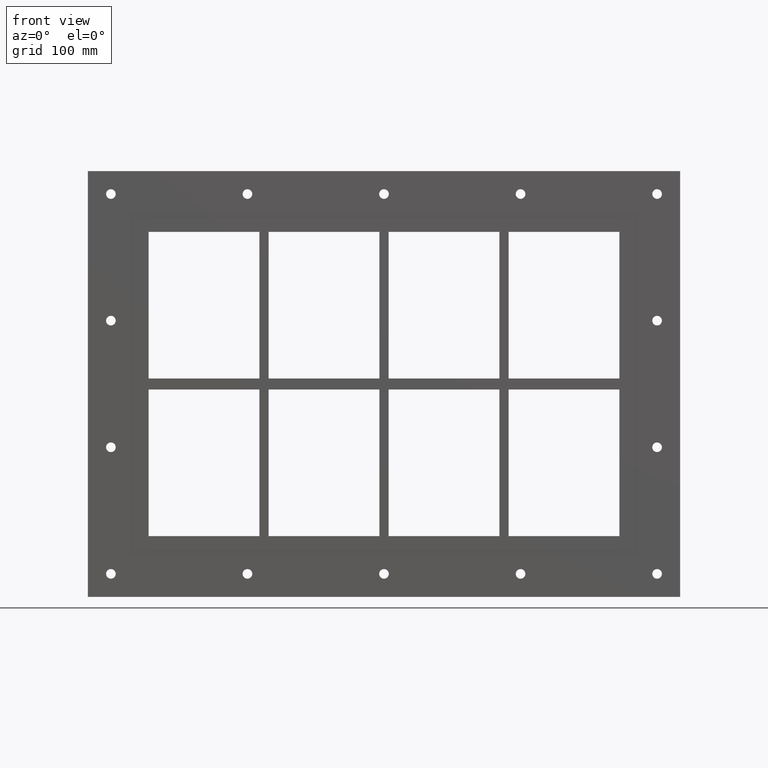
[diagram: clean part render]
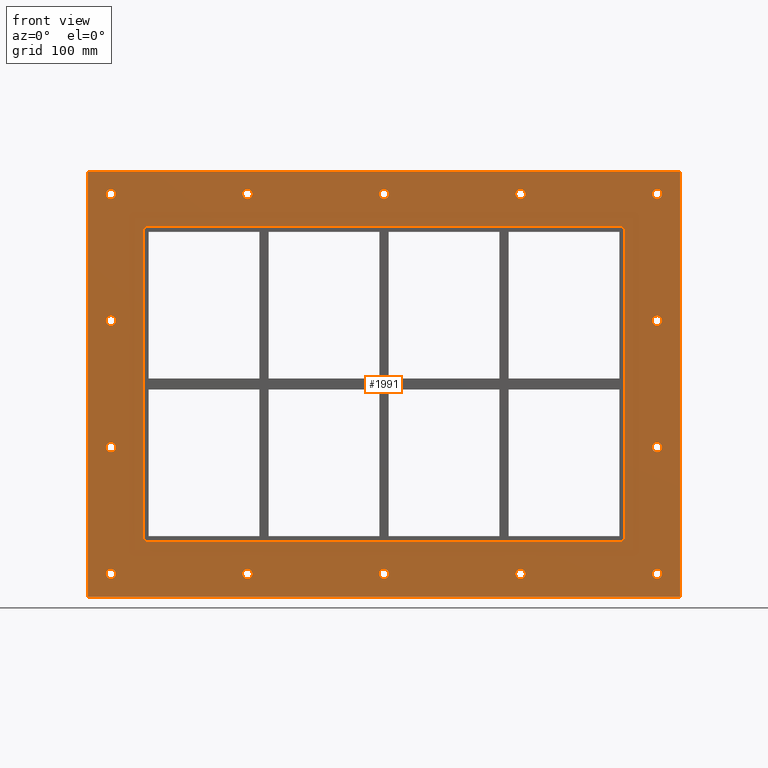
[diagram: same view with one face highlighted and labeled with its STEP entity id]
A machine part, front view. The second image highlights one B-rep face of the part: STEP entity #1991.
In plain terms, the highlighted planar face has unit normal (0, 1, 0).
Its self-contained STEP definition (entity closure, byte-faithful):
#84=CARTESIAN_POINT('',(-291.75000000000017,0.0,-206.50000000000003));
#85=VERTEX_POINT('',#84);
#86=CARTESIAN_POINT('',(-297.00000000000017,0.0,-206.50000000000003));
#87=DIRECTION('',(0.0,1.0,0.0));
#88=DIRECTION('',(1.0,0.0,0.0));
#89=AXIS2_PLACEMENT_3D('',#86,#87,#88);
#90=CIRCLE('',#89,5.25);
#91=EDGE_CURVE('',#85,#85,#90,.T.);
#112=CARTESIAN_POINT('',(302.24999999999989,0.0,-68.799999999999983));
#113=VERTEX_POINT('',#112);
#114=CARTESIAN_POINT('',(296.99999999999989,0.0,-68.799999999999983));
#115=DIRECTION('',(0.0,1.0,0.0));
#116=DIRECTION('',(1.0,0.0,0.0));
#117=AXIS2_PLACEMENT_3D('',#114,#115,#116);
#118=CIRCLE('',#117,5.25);
#119=EDGE_CURVE('',#113,#113,#118,.T.);
#140=CARTESIAN_POINT('',(-291.75000000000017,0.0,-68.799999999999983));
#141=VERTEX_POINT('',#140);
#142=CARTESIAN_POINT('',(-297.00000000000017,0.0,-68.799999999999983));
#143=DIRECTION('',(0.0,1.0,0.0));
#144=DIRECTION('',(1.0,0.0,0.0));
#145=AXIS2_PLACEMENT_3D('',#142,#143,#144);
#146=CIRCLE('',#145,5.25);
#147=EDGE_CURVE('',#141,#141,#146,.T.);
#168=CARTESIAN_POINT('',(302.24999999999989,0.0,68.900000000000006));
#169=VERTEX_POINT('',#168);
#170=CARTESIAN_POINT('',(296.99999999999989,0.0,68.900000000000006));
#171=DIRECTION('',(0.0,1.0,0.0));
#172=DIRECTION('',(1.0,0.0,0.0));
#173=AXIS2_PLACEMENT_3D('',#170,#171,#172);
#174=CIRCLE('',#173,5.25);
#175=EDGE_CURVE('',#169,#169,#174,.T.);
#196=CARTESIAN_POINT('',(-291.75000000000017,0.0,68.900000000000006));
#197=VERTEX_POINT('',#196);
#198=CARTESIAN_POINT('',(-297.00000000000017,0.0,68.900000000000006));
#199=DIRECTION('',(0.0,1.0,0.0));
#200=DIRECTION('',(1.0,0.0,0.0));
#201=AXIS2_PLACEMENT_3D('',#198,#199,#200);
#202=CIRCLE('',#201,5.25);
#203=EDGE_CURVE('',#197,#197,#202,.T.);
#224=CARTESIAN_POINT('',(-143.25000000000017,0.0,206.59999999999999));
#225=VERTEX_POINT('',#224);
#226=CARTESIAN_POINT('',(-148.50000000000017,0.0,206.59999999999999));
#227=DIRECTION('',(0.0,1.0,0.0));
#228=DIRECTION('',(1.0,0.0,0.0));
#229=AXIS2_PLACEMENT_3D('',#226,#227,#228);
#230=CIRCLE('',#229,5.25);
#231=EDGE_CURVE('',#225,#225,#230,.T.);
#252=CARTESIAN_POINT('',(-143.25000000000017,0.0,-206.50000000000003));
#253=VERTEX_POINT('',#252);
#254=CARTESIAN_POINT('',(-148.50000000000017,0.0,-206.50000000000003));
#255=DIRECTION('',(0.0,1.0,0.0));
#256=DIRECTION('',(1.0,0.0,0.0));
#257=AXIS2_PLACEMENT_3D('',#254,#255,#256);
#258=CIRCLE('',#257,5.25);
#259=EDGE_CURVE('',#253,#253,#258,.T.);
#280=CARTESIAN_POINT('',(5.249999999999844,0.0,206.59999999999999));
#281=VERTEX_POINT('',#280);
#282=CARTESIAN_POINT('',(-1.421085E-013,0.0,206.59999999999999));
#283=DIRECTION('',(0.0,1.0,0.0));
#284=DIRECTION('',(1.0,0.0,0.0));
#285=AXIS2_PLACEMENT_3D('',#282,#283,#284);
#286=CIRCLE('',#285,5.25);
#287=EDGE_CURVE('',#281,#281,#286,.T.);
#308=CARTESIAN_POINT('',(5.249999999999844,0.0,-206.50000000000003));
#309=VERTEX_POINT('',#308);
#310=CARTESIAN_POINT('',(-1.421085E-013,0.0,-206.50000000000003));
#311=DIRECTION('',(0.0,1.0,0.0));
#312=DIRECTION('',(1.0,0.0,0.0));
#313=AXIS2_PLACEMENT_3D('',#310,#311,#312);
#314=CIRCLE('',#313,5.25);
#315=EDGE_CURVE('',#309,#309,#314,.T.);
#336=CARTESIAN_POINT('',(153.74999999999986,0.0,206.59999999999999));
#337=VERTEX_POINT('',#336);
#338=CARTESIAN_POINT('',(148.49999999999989,0.0,206.59999999999999));
#339=DIRECTION('',(0.0,1.0,0.0));
#340=DIRECTION('',(1.0,0.0,0.0));
#341=AXIS2_PLACEMENT_3D('',#338,#339,#340);
#342=CIRCLE('',#341,5.25);
#343=EDGE_CURVE('',#337,#337,#342,.T.);
#364=CARTESIAN_POINT('',(153.74999999999986,0.0,-206.50000000000003));
#365=VERTEX_POINT('',#364);
#366=CARTESIAN_POINT('',(148.49999999999989,0.0,-206.50000000000003));
#367=DIRECTION('',(0.0,1.0,0.0));
#368=DIRECTION('',(1.0,0.0,0.0));
#369=AXIS2_PLACEMENT_3D('',#366,#367,#368);
#370=CIRCLE('',#369,5.25);
#371=EDGE_CURVE('',#365,#365,#370,.T.);
#392=CARTESIAN_POINT('',(302.24999999999989,0.0,-206.50000000000003));
#393=VERTEX_POINT('',#392);
#394=CARTESIAN_POINT('',(296.99999999999989,0.0,-206.50000000000003));
#395=DIRECTION('',(0.0,1.0,0.0));
#396=DIRECTION('',(1.0,0.0,0.0));
#397=AXIS2_PLACEMENT_3D('',#394,#395,#396);
#398=CIRCLE('',#397,5.25);
#399=EDGE_CURVE('',#393,#393,#398,.T.);
#420=CARTESIAN_POINT('',(-291.75000000000017,0.0,206.59999999999999));
#421=VERTEX_POINT('',#420);
#422=CARTESIAN_POINT('',(-297.00000000000017,0.0,206.59999999999999));
#423=DIRECTION('',(0.0,1.0,0.0));
#424=DIRECTION('',(1.0,0.0,0.0));
#425=AXIS2_PLACEMENT_3D('',#422,#423,#424);
#426=CIRCLE('',#425,5.25);
#427=EDGE_CURVE('',#421,#421,#426,.T.);
#448=CARTESIAN_POINT('',(302.24999999999989,0.0,206.59999999999999));
#449=VERTEX_POINT('',#448);
#450=CARTESIAN_POINT('',(296.99999999999989,0.0,206.59999999999999));
#451=DIRECTION('',(0.0,1.0,0.0));
#452=DIRECTION('',(1.0,0.0,0.0));
#453=AXIS2_PLACEMENT_3D('',#450,#451,#452);
#454=CIRCLE('',#453,5.25);
#455=EDGE_CURVE('',#449,#449,#454,.T.);
#1840=CARTESIAN_POINT('',(3.080944E-014,0.0,2.283429E-014));
#1841=DIRECTION('',(0.0,1.0,0.0));
#1842=DIRECTION('',(0.0,0.0,1.0));
#1843=AXIS2_PLACEMENT_3D('',#1840,#1841,#1842);
#1844=PLANE('',#1843);
#1845=CARTESIAN_POINT('',(-322.0,0.0,231.50000000000006));
#1846=VERTEX_POINT('',#1845);
#1847=CARTESIAN_POINT('',(322.00000000000011,0.0,231.50000000000006));
#1848=VERTEX_POINT('',#1847);
#1849=CARTESIAN_POINT('',(-322.0,0.0,231.50000000000006));
#1850=DIRECTION('',(1.0,0.0,0.0));
#1851=VECTOR('',#1850,644.0);
#1852=LINE('',#1849,#1851);
#1853=EDGE_CURVE('',#1846,#1848,#1852,.T.);
#1854=ORIENTED_EDGE('',*,*,#1853,.F.);
#1855=CARTESIAN_POINT('',(-322.0,0.0,-231.50000000000003));
#1856=VERTEX_POINT('',#1855);
#1857=CARTESIAN_POINT('',(-322.0,0.0,-231.50000000000003));
#1858=DIRECTION('',(0.0,0.0,1.0));
#1859=VECTOR('',#1858,463.00000000000011);
#1860=LINE('',#1857,#1859);
#1861=EDGE_CURVE('',#1856,#1846,#1860,.T.);
#1862=ORIENTED_EDGE('',*,*,#1861,.F.);
#1863=CARTESIAN_POINT('',(322.00000000000011,0.0,-231.50000000000003));
#1864=VERTEX_POINT('',#1863);
#1865=CARTESIAN_POINT('',(322.00000000000011,0.0,-231.50000000000003));
#1866=DIRECTION('',(-1.0,0.0,0.0));
#1867=VECTOR('',#1866,644.0);
#1868=LINE('',#1865,#1867);
#1869=EDGE_CURVE('',#1864,#1856,#1868,.T.);
#1870=ORIENTED_EDGE('',*,*,#1869,.F.);
#1871=CARTESIAN_POINT('',(322.00000000000011,0.0,231.50000000000006));
#1872=DIRECTION('',(0.0,0.0,-1.0));
#1873=VECTOR('',#1872,463.00000000000011);
#1874=LINE('',#1871,#1873);
#1875=EDGE_CURVE('',#1848,#1864,#1874,.T.);
#1876=ORIENTED_EDGE('',*,*,#1875,.F.);
#1877=EDGE_LOOP('',(#1854,#1862,#1870,#1876));
#1878=FACE_OUTER_BOUND('',#1877,.T.);
#1879=ORIENTED_EDGE('',*,*,#91,.T.);
#1880=EDGE_LOOP('',(#1879));
#1881=FACE_BOUND('',#1880,.T.);
#1882=ORIENTED_EDGE('',*,*,#119,.T.);
#1883=EDGE_LOOP('',(#1882));
#1884=FACE_BOUND('',#1883,.T.);
#1885=ORIENTED_EDGE('',*,*,#147,.T.);
#1886=EDGE_LOOP('',(#1885));
#1887=FACE_BOUND('',#1886,.T.);
#1888=ORIENTED_EDGE('',*,*,#175,.T.);
#1889=EDGE_LOOP('',(#1888));
#1890=FACE_BOUND('',#1889,.T.);
#1891=ORIENTED_EDGE('',*,*,#203,.T.);
#1892=EDGE_LOOP('',(#1891));
#1893=FACE_BOUND('',#1892,.T.);
#1894=ORIENTED_EDGE('',*,*,#231,.T.);
#1895=EDGE_LOOP('',(#1894));
#1896=FACE_BOUND('',#1895,.T.);
#1897=ORIENTED_EDGE('',*,*,#259,.T.);
#1898=EDGE_LOOP('',(#1897));
#1899=FACE_BOUND('',#1898,.T.);
#1900=ORIENTED_EDGE('',*,*,#287,.T.);
#1901=EDGE_LOOP('',(#1900));
#1902=FACE_BOUND('',#1901,.T.);
#1903=ORIENTED_EDGE('',*,*,#315,.T.);
#1904=EDGE_LOOP('',(#1903));
#1905=FACE_BOUND('',#1904,.T.);
#1906=ORIENTED_EDGE('',*,*,#343,.T.);
#1907=EDGE_LOOP('',(#1906));
#1908=FACE_BOUND('',#1907,.T.);
#1909=ORIENTED_EDGE('',*,*,#371,.T.);
#1910=EDGE_LOOP('',(#1909));
#1911=FACE_BOUND('',#1910,.T.);
#1912=ORIENTED_EDGE('',*,*,#399,.T.);
#1913=EDGE_LOOP('',(#1912));
#1914=FACE_BOUND('',#1913,.T.);
#1915=ORIENTED_EDGE('',*,*,#427,.T.);
#1916=EDGE_LOOP('',(#1915));
#1917=FACE_BOUND('',#1916,.T.);
#1918=ORIENTED_EDGE('',*,*,#455,.T.);
#1919=EDGE_LOOP('',(#1918));
#1920=FACE_BOUND('',#1919,.T.);
#1921=CARTESIAN_POINT('',(-262.0,0.0,-165.5));
#1922=VERTEX_POINT('',#1921);
#1923=CARTESIAN_POINT('',(-256.0,0.0,-171.50000000000003));
#1924=VERTEX_POINT('',#1923);
#1925=CARTESIAN_POINT('',(-256.0,0.0,-165.5));
#1926=DIRECTION('',(0.0,-1.0,0.0));
#1927=DIRECTION('',(-0.707106781186548,0.0,-0.707106781186548));
#1928=AXIS2_PLACEMENT_3D('',#1925,#1926,#1927);
#1929=CIRCLE('',#1928,6.000000000000002);
#1930=EDGE_CURVE('',#1922,#1924,#1929,.T.);
#1931=ORIENTED_EDGE('',*,*,#1930,.F.);
#1932=CARTESIAN_POINT('',(-262.0,0.0,165.5));
#1933=VERTEX_POINT('',#1932);
#1934=CARTESIAN_POINT('',(-262.0,0.0,165.5));
#1935=DIRECTION('',(0.0,0.0,-1.0));
#1936=VECTOR('',#1935,331.0);
#1937=LINE('',#1934,#1936);
#1938=EDGE_CURVE('',#1933,#1922,#1937,.T.);
#1939=ORIENTED_EDGE('',*,*,#1938,.F.);
#1940=CARTESIAN_POINT('',(-256.0,0.0,171.50000000000003));
#1941=VERTEX_POINT('',#1940);
#1942=CARTESIAN_POINT('',(-256.0,0.0,165.5));
#1943=DIRECTION('',(0.0,-1.0,0.0));
#1944=DIRECTION('',(-0.707106781186548,0.0,0.707106781186548));
#1945=AXIS2_PLACEMENT_3D('',#1942,#1943,#1944);
#1946=CIRCLE('',#1945,6.000000000000002);
#1947=EDGE_CURVE('',#1941,#1933,#1946,.T.);
#1948=ORIENTED_EDGE('',*,*,#1947,.F.);
#1949=CARTESIAN_POINT('',(256.0,0.0,171.50000000000003));
#1950=VERTEX_POINT('',#1949);
#1951=CARTESIAN_POINT('',(256.0,0.0,171.50000000000003));
#1952=DIRECTION('',(-1.0,0.0,0.0));
#1953=VECTOR('',#1952,512.0);
#1954=LINE('',#1951,#1953);
#1955=EDGE_CURVE('',#1950,#1941,#1954,.T.);
#1956=ORIENTED_EDGE('',*,*,#1955,.F.);
#1957=CARTESIAN_POINT('',(262.0,0.0,165.5));
#1958=VERTEX_POINT('',#1957);
#1959=CARTESIAN_POINT('',(256.0,0.0,165.5));
#1960=DIRECTION('',(0.0,-1.0,0.0));
#1961=DIRECTION('',(0.707106781186548,0.0,0.707106781186548));
#1962=AXIS2_PLACEMENT_3D('',#1959,#1960,#1961);
#1963=CIRCLE('',#1962,6.000000000000002);
#1964=EDGE_CURVE('',#1958,#1950,#1963,.T.);
#1965=ORIENTED_EDGE('',*,*,#1964,.F.);
#1966=CARTESIAN_POINT('',(262.0,0.0,-165.5));
#1967=VERTEX_POINT('',#1966);
#1968=CARTESIAN_POINT('',(262.0,0.0,-165.5));
#1969=DIRECTION('',(0.0,0.0,1.0));
#1970=VECTOR('',#1969,331.0);
#1971=LINE('',#1968,#1970);
#1972=EDGE_CURVE('',#1967,#1958,#1971,.T.);
#1973=ORIENTED_EDGE('',*,*,#1972,.F.);
#1974=CARTESIAN_POINT('',(256.0,0.0,-171.50000000000003));
#1975=VERTEX_POINT('',#1974);
#1976=CARTESIAN_POINT('',(256.0,0.0,-165.5));
#1977=DIRECTION('',(0.0,-1.0,0.0));
#1978=DIRECTION('',(0.707106781186548,0.0,-0.707106781186548));
#1979=AXIS2_PLACEMENT_3D('',#1976,#1977,#1978);
#1980=CIRCLE('',#1979,6.000000000000002);
#1981=EDGE_CURVE('',#1975,#1967,#1980,.T.);
#1982=ORIENTED_EDGE('',*,*,#1981,.F.);
#1983=CARTESIAN_POINT('',(-255.99999999999997,0.0,-171.50000000000003));
#1984=DIRECTION('',(1.0,0.0,0.0));
#1985=VECTOR('',#1984,512.0);
#1986=LINE('',#1983,#1985);
#1987=EDGE_CURVE('',#1924,#1975,#1986,.T.);
#1988=ORIENTED_EDGE('',*,*,#1987,.F.);
#1989=EDGE_LOOP('',(#1931,#1939,#1948,#1956,#1965,#1973,#1982,#1988));
#1990=FACE_BOUND('',#1989,.T.);
#1991=ADVANCED_FACE('',(#1878,#1881,#1884,#1887,#1890,#1893,#1896,#1899,#1902,#1905,#1908,#1911,#1914,#1917,#1920,#1990),#1844,.F.);